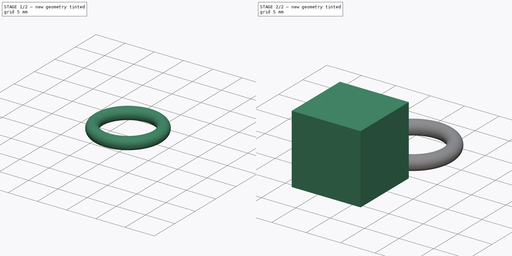
[diagram: build sequence overview — one tinted view per stage of 2, left to right]
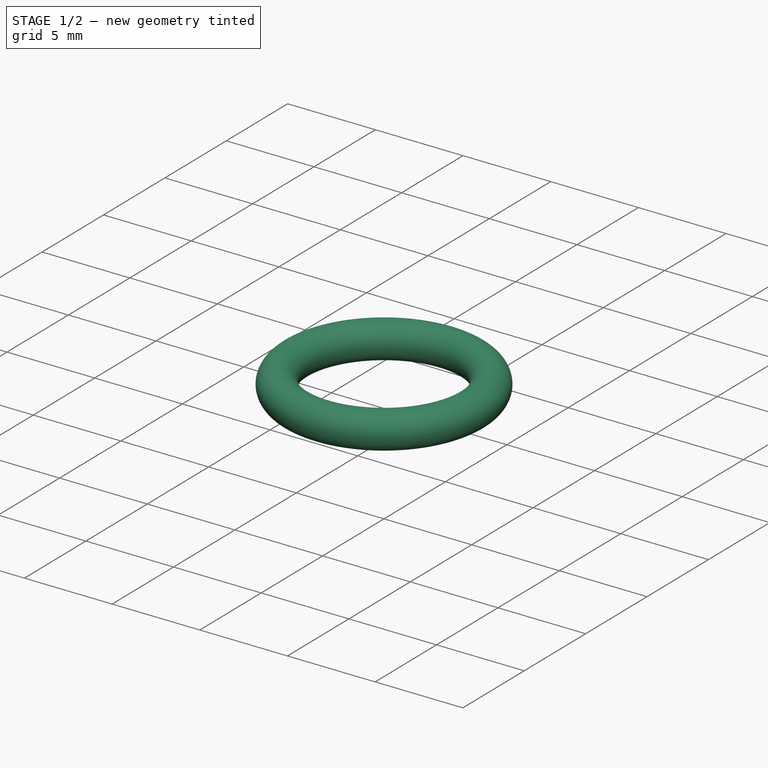
[diagram: stage 1 of 2 — iso view after this stage's code; geometry added in this stage tinted green]
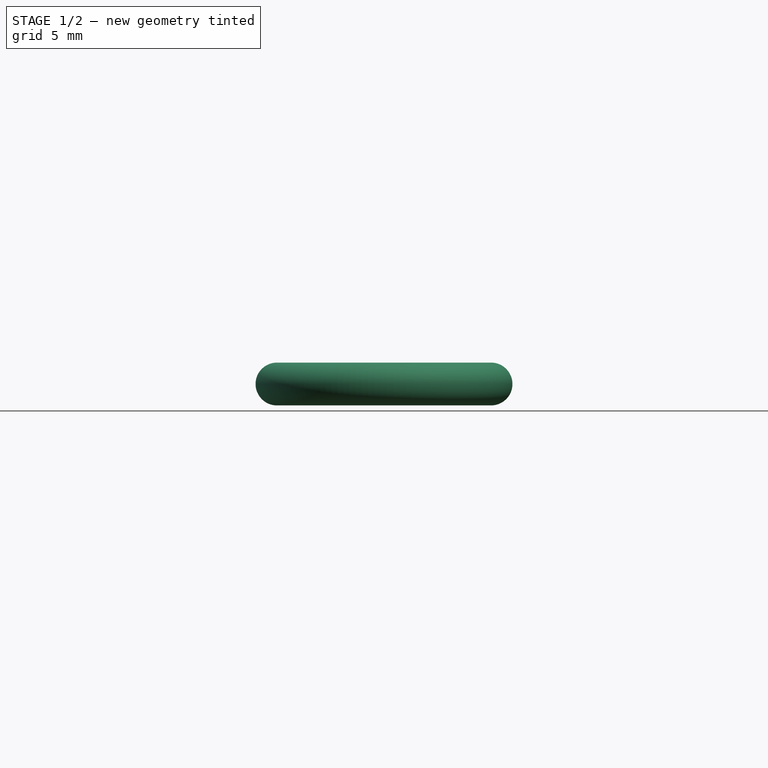
[diagram: stage 1 of 2 — front view after this stage's code; geometry added in this stage tinted green]
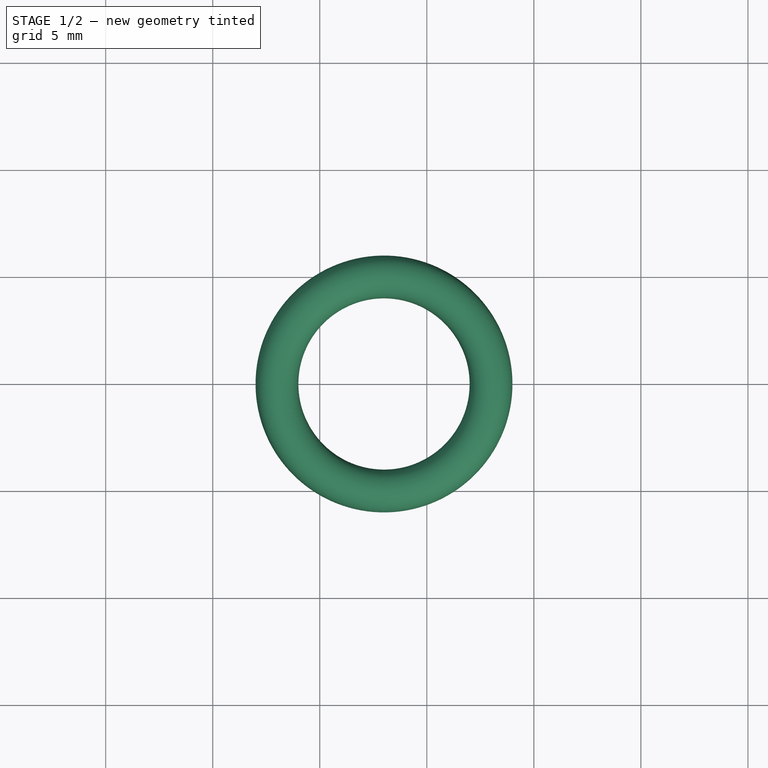
[diagram: stage 1 of 2 — top view after this stage's code; geometry added in this stage tinted green]
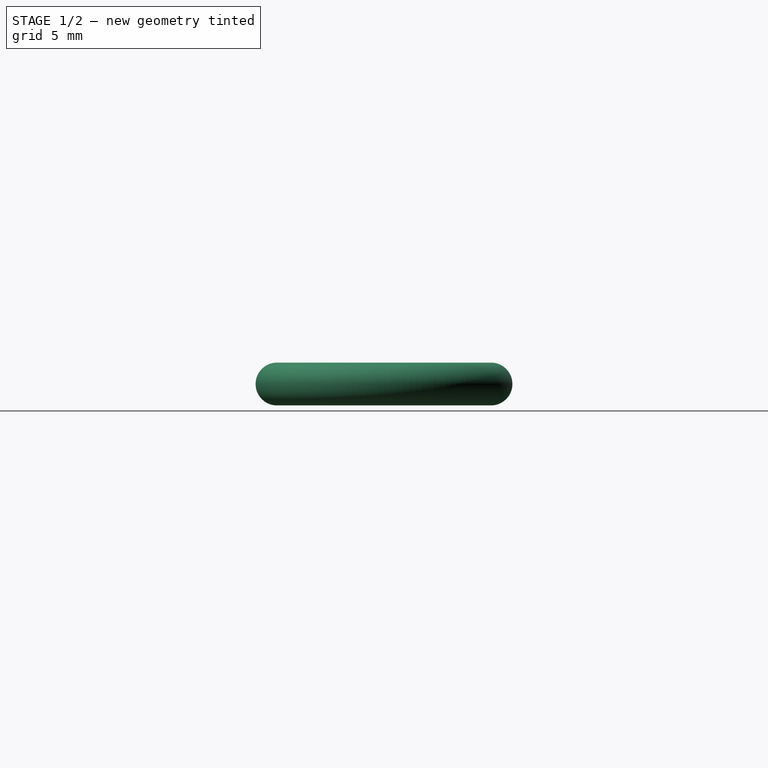
[diagram: stage 1 of 2 — right view after this stage's code; geometry added in this stage tinted green]
FCSTD DOCUMENT  (FreeCAD 0.17R13541 (Git))
Label: geometry_sweep_showcase
License: All rights reserved
LicenseURL: http://en.wikipedia.org/wiki/All_rights_reserved
objects: Sketcher::SketchObject×8, Spreadsheet::Sheet×1, Part::Box×1, Part::Torus×1
note: 10 computed .brp shape members not serialized (recipe doc carries the construction recipe); baked Part::Feature solids carry a one-line shape summary decoded from their .brp

FEATURE [Part::Torus] Torus  label="Trash_to_ignore"
  Angle1 = -180
  Angle2 = 180
  Angle3 = 360
  AttacherType = Attacher::AttachEngine3D
  Placement = pos=(-17,20,0) rot=(0,0,1;0rad)
  Radius1 = 5
  Radius2 = 1
FEATURE [Sketcher::SketchObject] Sketch004  label="Sketch_wire_shell"
  sketch-geometry (4):
    g0: LineSegment StartX=-20.0897 StartY=-20.1276 StartZ=0 EndX=-3.39659 EndY=-20.1276 EndZ=0
    g1: LineSegment StartX=-3.39659 StartY=-20.1276 StartZ=0 EndX=-3.39659 EndY=-22.831 EndZ=0
    g2: LineSegment StartX=-3.39659 StartY=-22.831 StartZ=0 EndX=-20.0897 EndY=-22.831 EndZ=0
    g3: LineSegment StartX=-20.0897 StartY=-22.831 StartZ=0 EndX=-20.0897 EndY=-20.1276 EndZ=0
  constraints (8):
    c: Coincident(g0,g1)
    c: Coincident(g1,g2)
    c: Coincident(g2,g3)
    c: Coincident(g3,g0)
    c: Horizontal(g0)
    c: Horizontal(g2)
    c: Vertical(g1)
    c: Vertical(g3)
FEATURE [Sketcher::SketchObject] Sketch005  label="Sketch_substrate"
  sketch-geometry (4):
    g0: LineSegment StartX=-33.7306 StartY=-5.10626 StartZ=0 EndX=-18.6343 EndY=-5.10626 EndZ=0
    g1: LineSegment StartX=-18.6343 StartY=-5.10626 StartZ=0 EndX=-18.6343 EndY=-32.3002 EndZ=0
    g2: LineSegment StartX=-18.6343 StartY=-32.3002 StartZ=0 EndX=-33.7306 EndY=-32.3002 EndZ=0
    g3: LineSegment StartX=-33.7306 StartY=-32.3002 StartZ=0 EndX=-33.7306 EndY=-5.10626 EndZ=0
  constraints (8):
    c: Coincident(g0,g1)
    c: Coincident(g1,g2)
    c: Coincident(g2,g3)
    c: Coincident(g3,g0)
    c: Horizontal(g0)
    c: Horizontal(g2)
    c: Vertical(g1)
    c: Vertical(g3)
FEATURE [Sketcher::SketchObject] Sketch006  label="Sketch_layer_1"
  sketch-geometry (4):
    g0: LineSegment StartX=-25.314 StartY=-17.527 StartZ=0 EndX=-19.4669 EndY=-17.527 EndZ=0
    g1: LineSegment StartX=-19.4669 StartY=-17.527 StartZ=0 EndX=-19.4669 EndY=-27.2722 EndZ=0
    g2: LineSegment StartX=-19.4669 StartY=-27.2722 StartZ=0 EndX=-25.314 EndY=-27.2722 EndZ=0
    g3: LineSegment StartX=-25.314 StartY=-27.2722 StartZ=0 EndX=-25.314 EndY=-17.527 EndZ=0
  constraints (8):
    c: Coincident(g0,g1)
    c: Coincident(g1,g2)
    c: Coincident(g2,g3)
    c: Coincident(g3,g0)
    c: Horizontal(g0)
    c: Horizontal(g2)
    c: Vertical(g1)
    c: Vertical(g3)
FEATURE [Sketcher::SketchObject] Sketch007  label="Sketch_layer_2"
  sketch-geometry (8):
    g0: LineSegment StartX=-26.9746 StartY=-16.1711 StartZ=0 EndX=-18.9742 EndY=-16.1711 EndZ=0
    g1: LineSegment StartX=-18.9742 StartY=-16.1711 StartZ=0 EndX=-18.9742 EndY=-23.9699 EndZ=0
    g2: LineSegment StartX=-18.9742 StartY=-23.9699 StartZ=0 EndX=-26.9746 EndY=-23.9699 EndZ=0
    g3: LineSegment StartX=-26.9746 StartY=-23.9699 StartZ=0 EndX=-26.9746 EndY=-16.1711 EndZ=0
    g4: LineSegment StartX=-27.19 StartY=-25.8596 StartZ=0 EndX=-23.9995 EndY=-25.8596 EndZ=0
    g5: LineSegment StartX=-23.9995 StartY=-25.8596 StartZ=0 EndX=-23.9995 EndY=-28.6927 EndZ=0
    g6: LineSegment StartX=-23.9995 StartY=-28.6927 StartZ=0 EndX=-27.19 EndY=-28.6927 EndZ=0
    g7: LineSegment StartX=-27.19 StartY=-28.6927 StartZ=0 EndX=-27.19 EndY=-25.8596 EndZ=0
  constraints (16):
    c: Coincident(g0,g1)
    c: Coincident(g1,g2)
    c: Coincident(g2,g3)
    c: Coincident(g3,g0)
    c: Horizontal(g0)
    c: Horizontal(g2)
    c: Vertical(g1)
    c: Vertical(g3)
    c: Coincident(g4,g5)
    c: Coincident(g5,g6)
    c: Coincident(g6,g7)
    c: Coincident(g7,g4)
    c: Horizontal(g4)
    c: Horizontal(g6)
    c: Vertical(g5)
    c: Vertical(g7)
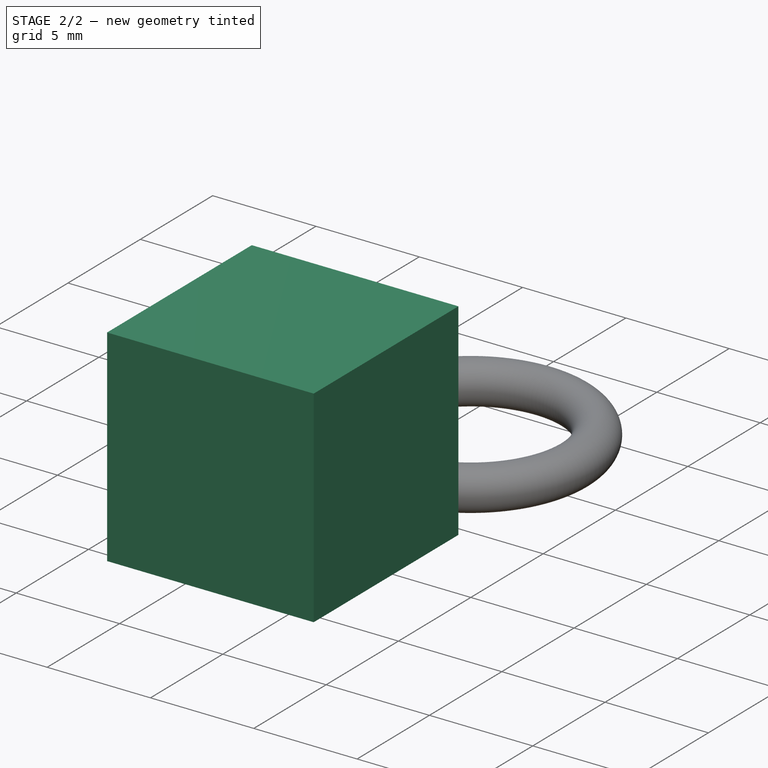
[diagram: stage 2 of 2 — iso view after this stage's code; geometry added in this stage tinted green]
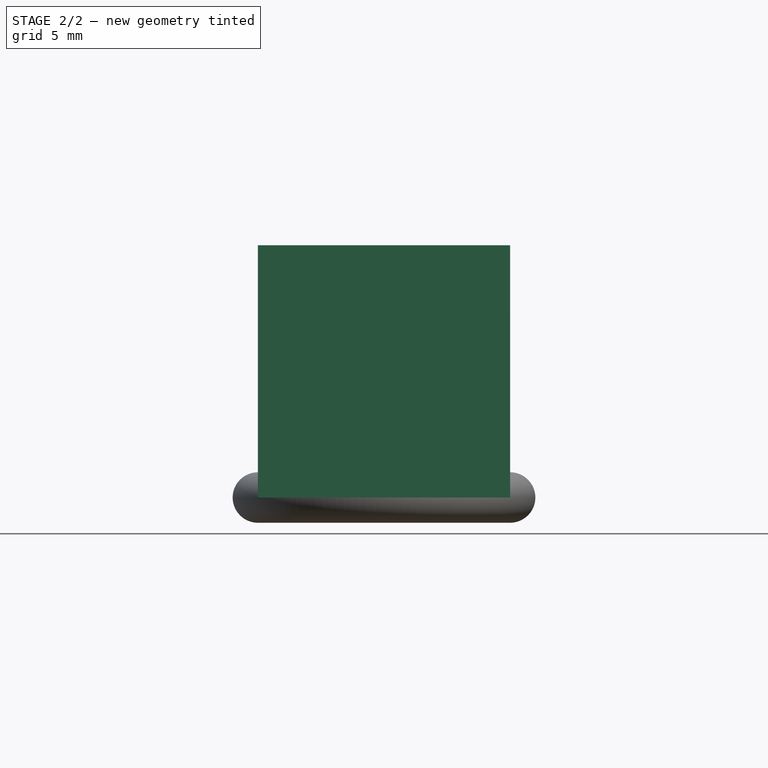
[diagram: stage 2 of 2 — front view after this stage's code; geometry added in this stage tinted green]
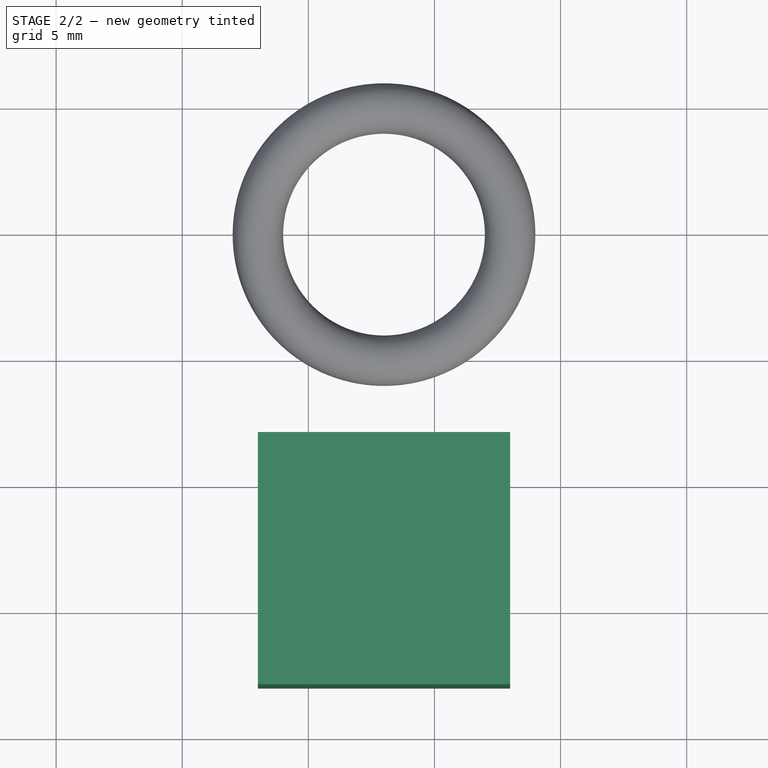
[diagram: stage 2 of 2 — top view after this stage's code; geometry added in this stage tinted green]
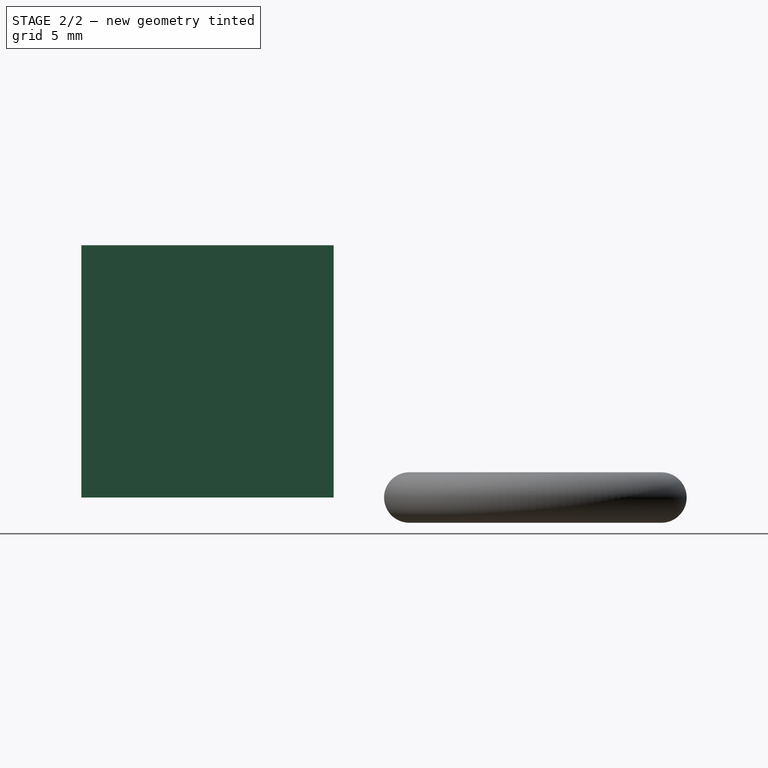
[diagram: stage 2 of 2 — right view after this stage's code; geometry added in this stage tinted green]
FEATURE [Spreadsheet::Sheet] modelParams
  cells = A1=paramName; B1=paramValue; A2=d1; B2(d1)=0.5
FEATURE [Sketcher::SketchObject] Sketch  label="Sketch_variable"
  expr: Constraints[10] = modelParams.d1
  sketch-geometry (4):
    g0: LineSegment StartX=-8.0042 StartY=2.5 StartZ=0 EndX=-2 EndY=2.5 EndZ=0
    g1: LineSegment StartX=-2 StartY=2.5 StartZ=0 EndX=-2 EndY=2 EndZ=0
    g2: LineSegment StartX=-2 StartY=2 StartZ=0 EndX=-8.0042 EndY=2 EndZ=0
    g3: LineSegment StartX=-8.0042 StartY=2 StartZ=0 EndX=-8.0042 EndY=2.5 EndZ=0
  constraints (11):
    c: Coincident(g0,g1)
    c: Coincident(g1,g2)
    c: Coincident(g2,g3)
    c: Coincident(g3,g0)
    c: Horizontal(g0)
    c: Horizontal(g2)
    c: Vertical(g1)
    c: Vertical(g3)
    c: DistanceX(g1) = -2
    c: DistanceY(g1) = 2
    c: Distance(g1) = 0.5
FEATURE [Sketcher::SketchObject] Sketch001  label="Sketch_multi"
  sketch-geometry (13):
    g0: LineSegment StartX=11.8179 StartY=9.03085 StartZ=0 EndX=9.52452 EndY=11.3243 EndZ=0
    g1: LineSegment StartX=9.52452 StartY=11.3243 StartZ=0 EndX=6.28113 EndY=11.3243 EndZ=0
    g2: LineSegment StartX=6.28113 StartY=11.3243 StartZ=0 EndX=3.98771 EndY=9.03085 EndZ=0
    g3: LineSegment StartX=3.98771 StartY=9.03085 StartZ=0 EndX=3.98771 EndY=5.78747 EndZ=0
    g4: LineSegment StartX=3.98771 StartY=5.78747 StartZ=0 EndX=6.28113 EndY=3.49405 EndZ=0
    g5: LineSegment StartX=6.28113 StartY=3.49405 StartZ=0 EndX=9.52452 EndY=3.49405 EndZ=0
    g6: LineSegment StartX=9.52452 StartY=3.49405 StartZ=0 EndX=11.8179 EndY=5.78747 EndZ=0
    g7: LineSegment StartX=11.8179 StartY=5.78747 StartZ=0 EndX=11.8179 EndY=9.03085 EndZ=0
    g8: Circle [constr] CenterX=7.90283 CenterY=7.40916 CenterZ=0 NormalX=0 NormalY=0 NormalZ=1 AngleXU=0 Radius=4.23769
    g9: LineSegment StartX=16.6923 StartY=2.89803 StartZ=0 EndX=24.7134 EndY=7.30052 EndZ=0
    g10: LineSegment StartX=24.7134 StartY=7.30052 StartZ=0 EndX=16.8902 EndY=12.0457 EndZ=0
    g11: LineSegment StartX=16.8902 StartY=12.0457 StartZ=0 EndX=16.6923 EndY=2.89803 EndZ=0
    g12: Circle [constr] CenterX=19.432 CenterY=7.41477 CenterZ=0 NormalX=0 NormalY=0 NormalZ=1 AngleXU=0 Radius=5.28267
  constraints (26):
    c: Coincident(g0,g1)
    c: Coincident(g1,g2)
    c: Coincident(g2,g3)
    c: Coincident(g3,g4)
    c: Coincident(g4,g5)
    c: Coincident(g5,g6)
    c: Coincident(g6,g7)
    c: Coincident(g7,g0)
    c: Equal(g0, g1-g7) x7
    c: PointOnObject(g0,g8)
    c: PointOnObject(g1,g8)
    c: PointOnObject(g2,g8)
    c: PointOnObject(g3,g8)
    c: PointOnObject(g4,g8)
    c: PointOnObject(g5,g8)
    c: PointOnObject(g6,g8)
    c: PointOnObject(g7,g8)
    c: Vertical(g7)
    c: Coincident(g9,g10)
    c: Coincident(g10,g11)
    c: Coincident(g11,g9)
    c: Equal(g9,g10)
    c: Equal(g9,g11)
    c: PointOnObject(g9,g12)
    c: PointOnObject(g10,g12)
    c: PointOnObject(g11,g12)
FEATURE [Sketcher::SketchObject] Sketch002  label="Sketch_sag"
  sketch-geometry (4):
    g0: LineSegment StartX=9.32405 StartY=-9.85861 StartZ=0 EndX=28.1195 EndY=-9.85861 EndZ=0
    g1: LineSegment StartX=28.1195 StartY=-9.85861 StartZ=0 EndX=28.1195 EndY=-22.998 EndZ=0
    g2: LineSegment StartX=28.1195 StartY=-22.998 StartZ=0 EndX=9.32405 EndY=-22.998 EndZ=0
    g3: LineSegment StartX=9.32405 StartY=-22.998 StartZ=0 EndX=9.32405 EndY=-9.85861 EndZ=0
  constraints (8):
    c: Coincident(g0,g1)
    c: Coincident(g1,g2)
    c: Coincident(g2,g3)
    c: Coincident(g3,g0)
    c: Horizontal(g0)
    c: Horizontal(g2)
    c: Vertical(g1)
    c: Vertical(g3)
FEATURE [Sketcher::SketchObject] Sketch003  label="Sketch_wire"
  sketch-geometry (3):
    g0: LineSegment StartX=-4.78297 StartY=-13.6927 StartZ=0 EndX=-11.3321 EndY=-20.813 EndZ=0
    g1: LineSegment StartX=-11.3321 StartY=-20.813 StartZ=0 EndX=-12.9782 EndY=-21.7963 EndZ=0
    g2: LineSegment StartX=-12.9782 StartY=-21.7963 StartZ=0 EndX=-21.3823 EndY=-21.7963 EndZ=0
  constraints (3):
    c: Coincident(g0,g1)
    c: Coincident(g1,g2)
    c: Horizontal(g2)
FEATURE [Part::Box] Box  label="Cube_passthrough"
  AttacherType = Attacher::AttachEngine3D
  Height = 10
  Length = 10
  Placement = pos=(-22,2,0) rot=(0,0,1;0rad)
  Width = 10
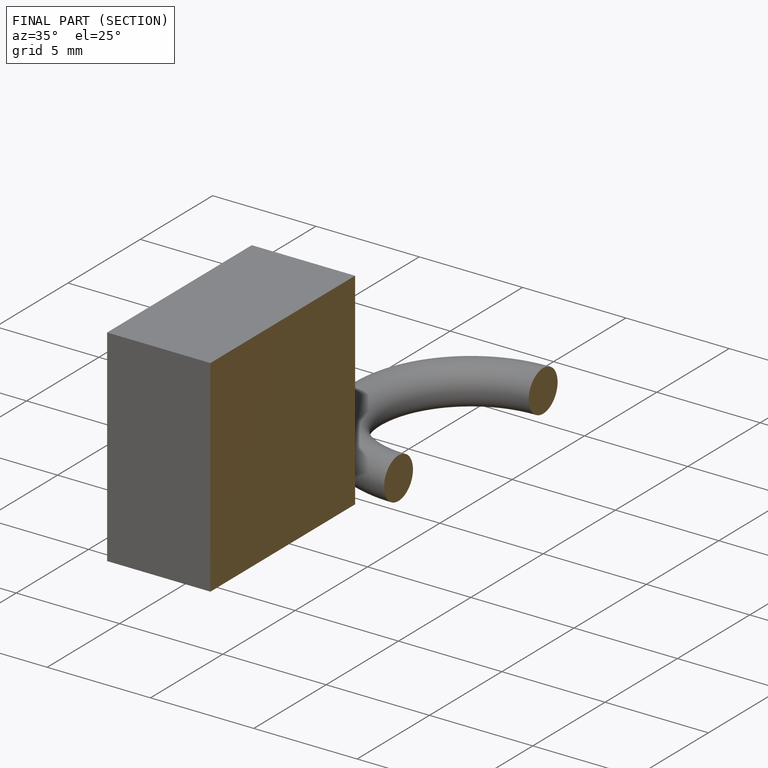
[diagram: finished part — half-section view (interior)]
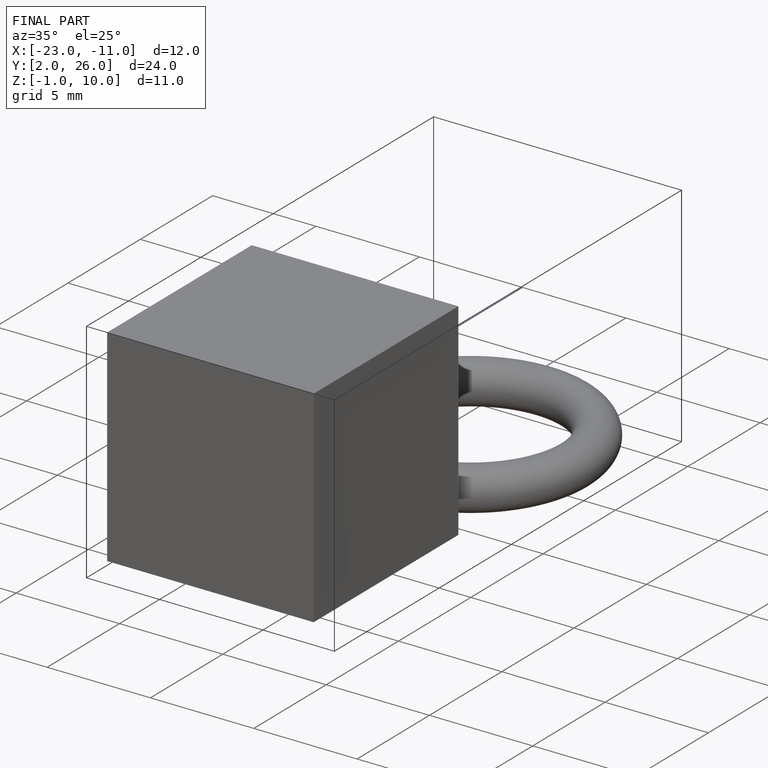
[diagram: finished part — iso view with bounding-box wireframe]
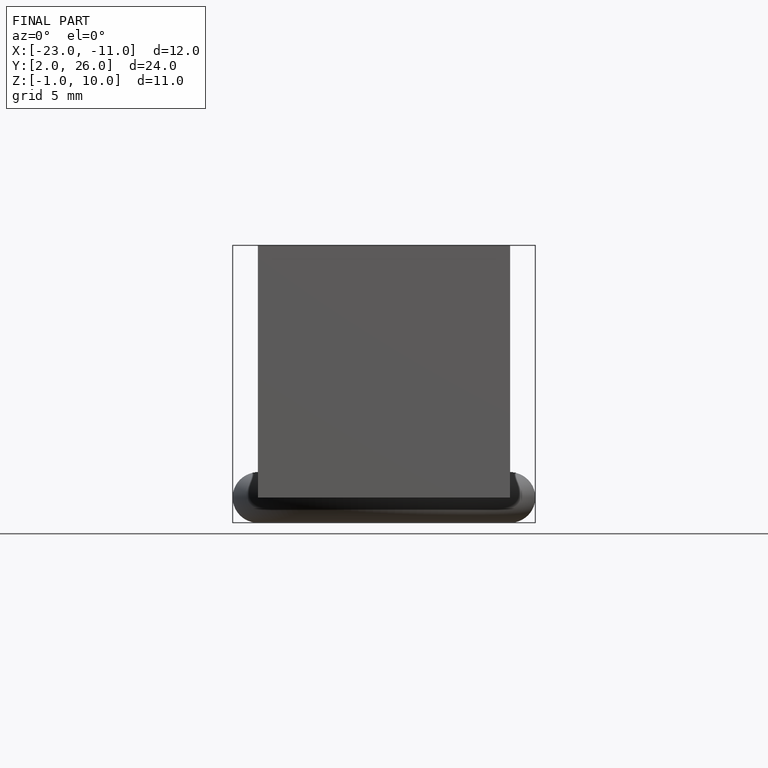
[diagram: finished part — front view with bounding-box wireframe]
